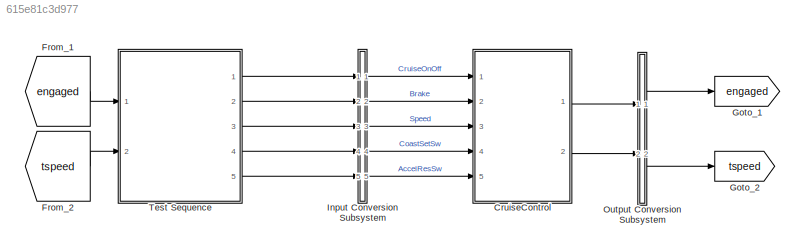
MODEL slx_615e81c3d977
KIND model
CONFIG AbsTol = auto
CONFIG EnableMultiTasking = on
CONFIG FixedStep = 0.1
CONFIG MaxStep = auto
CONFIG MinStep = auto
CONFIG RelTol = 1e-3
CONFIG SampleTimeConstraint = Unconstrained
CONFIG SolverName = FixedStepDiscrete
CONFIG StartTime = 0.0
CONFIG StopTime = 10
BLOCK [ModelReference] CruiseControl
  ModelNameDialog = CruiseControl
  ModelReferenceVersion = 4.0
  Ports = [5, 2]
BLOCK [From] From_1
  GotoTag = engaged
BLOCK [From] From_2
  GotoTag = tspeed
BLOCK [Goto] Goto_1
  GotoTag = engaged
BLOCK [Goto] Goto_2
  GotoTag = tspeed
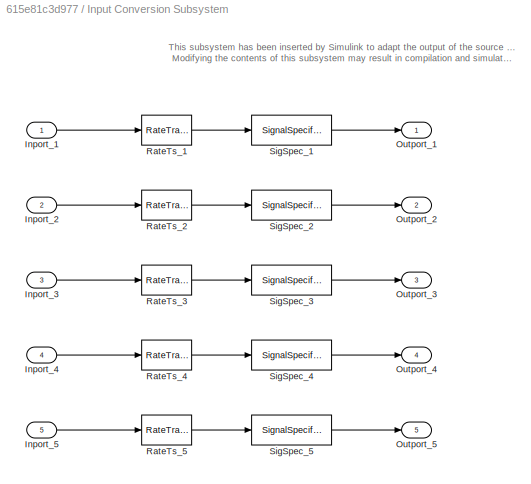
BLOCK [SubSystem] Input Conversion Subsystem
  AttributesFormatString = %<Description>
  Description = Signal spec.\nand routing
  Permissions = ReadOnly
  PermitHierarchicalResolution = ExplicitOnly
  Ports = [5, 5]
  RequestExecContextInheritance = off
  Tag = __SLT_ICS__
  UserDataPersistent = on
BLOCK [Inport] Input Conversion Subsystem/Inport_1
BLOCK [Inport] Input Conversion Subsystem/Inport_2
  Port = 2
BLOCK [Inport] Input Conversion Subsystem/Inport_3
  Port = 3
BLOCK [Inport] Input Conversion Subsystem/Inport_4
  Port = 4
BLOCK [Inport] Input Conversion Subsystem/Inport_5
  Port = 5
BLOCK [Outport] Input Conversion Subsystem/Outport_1
BLOCK [Outport] Input Conversion Subsystem/Outport_2
  Port = 2
BLOCK [Outport] Input Conversion Subsystem/Outport_3
  Port = 3
BLOCK [Outport] Input Conversion Subsystem/Outport_4
  Port = 4
BLOCK [Outport] Input Conversion Subsystem/Outport_5
  Port = 5
BLOCK [RateTransition] Input Conversion Subsystem/RateTs_1
  OutPortSampleTime = 0.1
BLOCK [RateTransition] Input Conversion Subsystem/RateTs_2
  OutPortSampleTime = 0.1
BLOCK [RateTransition] Input Conversion Subsystem/RateTs_3
  OutPortSampleTime = 0.1
BLOCK [RateTransition] Input Conversion Subsystem/RateTs_4
  OutPortSampleTime = 0.1
BLOCK [RateTransition] Input Conversion Subsystem/RateTs_5
  OutPortSampleTime = 0.1
BLOCK [SignalSpecification] Input Conversion Subsystem/SigSpec_1
  Dimensions = [1]
  OutDataTypeStr = boolean
  SampleTime = 0.1
  SignalType = real
  VarSizeSig = No
BLOCK [SignalSpecification] Input Conversion Subsystem/SigSpec_2
  Dimensions = [1]
  OutDataTypeStr = boolean
  SampleTime = 0.1
  SignalType = real
  VarSizeSig = No
BLOCK [SignalSpecification] Input Conversion Subsystem/SigSpec_3
  Dimensions = [1]
  OutDataTypeStr = uint8
  SampleTime = 0.1
  SignalType = real
  VarSizeSig = No
BLOCK [SignalSpecification] Input Conversion Subsystem/SigSpec_4
  Dimensions = [1]
  OutDataTypeStr = boolean
  SampleTime = 0.1
  SignalType = real
  VarSizeSig = No
BLOCK [SignalSpecification] Input Conversion Subsystem/SigSpec_5
  Dimensions = [1]
  OutDataTypeStr = boolean
  SampleTime = 0.1
  SignalType = real
  VarSizeSig = No
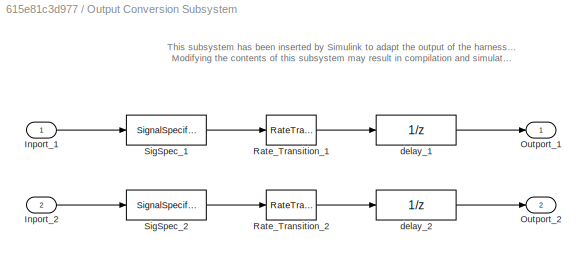
BLOCK [SubSystem] Output Conversion Subsystem
  AttributesFormatString = %<Description>
  Description = Signal spec.\nand routing
  Permissions = ReadOnly
  PermitHierarchicalResolution = ExplicitOnly
  Ports = [2, 2]
  RequestExecContextInheritance = off
  Tag = __SLT_OCS__
  UserDataPersistent = on
BLOCK [Inport] Output Conversion Subsystem/Inport_1
BLOCK [Inport] Output Conversion Subsystem/Inport_2
  Port = 2
BLOCK [Outport] Output Conversion Subsystem/Outport_1
BLOCK [Outport] Output Conversion Subsystem/Outport_2
  Port = 2
BLOCK [RateTransition] Output Conversion Subsystem/Rate_Transition_1
  OutPortSampleTimeOpt = Inherit
BLOCK [RateTransition] Output Conversion Subsystem/Rate_Transition_2
  OutPortSampleTimeOpt = Inherit
BLOCK [SignalSpecification] Output Conversion Subsystem/SigSpec_1
  Dimensions = [1]
  OutDataTypeStr = boolean
  SampleTime = 0.1
  SignalType = real
  VarSizeSig = No
BLOCK [SignalSpecification] Output Conversion Subsystem/SigSpec_2
  Dimensions = [1]
  OutDataTypeStr = uint8
  SampleTime = 0.1
  SignalType = real
  VarSizeSig = No
BLOCK [UnitDelay] Output Conversion Subsystem/delay_1
  SampleTime = -1
BLOCK [UnitDelay] Output Conversion Subsystem/delay_2
  SampleTime = -1
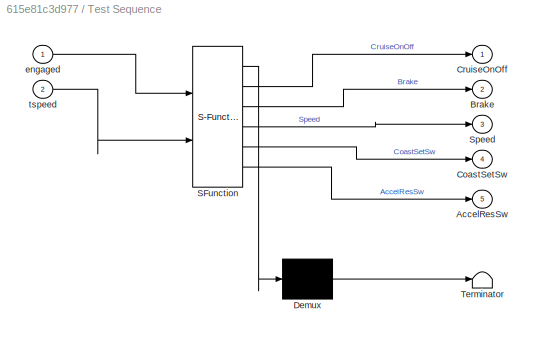
BLOCK [SubSystem] Test Sequence
  ErrorFcn = Stateflow.Translate.translate
  PermitHierarchicalResolution = ExplicitOnly
  Ports = [2, 5]
  RequestExecContextInheritance = off
  SFBlockType = Test Sequence
  ShowPortLabels = none
  TreatAsAtomicUnit = on
BLOCK [Demux] Test Sequence/ Demux 
  Outputs = 1
  Ports = [1, 1]
BLOCK [S-Function] Test Sequence/ SFunction 
  EnableBusSupport = off
  FunctionName = sf_sfun
  PortCounts = [2 6]
  Ports = [2, 6]
  SFcnIsStateOwnerBlock = off
  SFunctionDeploymentMode = off
  Tag = Stateflow S-Function 4
BLOCK [Terminator] Test Sequence/ Terminator 
BLOCK [Outport] Test Sequence/AccelResSw
  Port = 5
BLOCK [Outport] Test Sequence/Brake
  Port = 2
BLOCK [Outport] Test Sequence/CoastSetSw
  Port = 4
BLOCK [Outport] Test Sequence/CruiseOnOff
BLOCK [Outport] Test Sequence/Speed
  Port = 3
BLOCK [Inport] Test Sequence/engaged
BLOCK [Inport] Test Sequence/tspeed
  Port = 2
ANNOTATION Input Conversion Subsystem: This subsystem has been inserted by Simulink to adapt the output of the source blocks to the interface required by the harnessed component. Modifying the contents of this subsystem may result in compilation and simulation failure.
ANNOTATION Output Conversion Subsystem: This subsystem has been inserted by Simulink to adapt the output of the harnessed component to the interface required by the sink blocks. Modifying the contents of this subsystem may result in compilation and simulation failure.
LINE CruiseControl:1 -> Output Conversion Subsystem:1
LINE CruiseControl:2 -> Output Conversion Subsystem:2
LINE From_1:1 -> Test Sequence:1
LINE From_2:1 -> Test Sequence:2
LINE Input Conversion Subsystem/Inport_1:1 -> Input Conversion Subsystem/RateTs_1:1
LINE Input Conversion Subsystem/Inport_2:1 -> Input Conversion Subsystem/RateTs_2:1
LINE Input Conversion Subsystem/Inport_3:1 -> Input Conversion Subsystem/RateTs_3:1
LINE Input Conversion Subsystem/Inport_4:1 -> Input Conversion Subsystem/RateTs_4:1
LINE Input Conversion Subsystem/Inport_5:1 -> Input Conversion Subsystem/RateTs_5:1
LINE Input Conversion Subsystem/RateTs_1:1 -> Input Conversion Subsystem/SigSpec_1:1
LINE Input Conversion Subsystem/RateTs_2:1 -> Input Conversion Subsystem/SigSpec_2:1
LINE Input Conversion Subsystem/RateTs_3:1 -> Input Conversion Subsystem/SigSpec_3:1
LINE Input Conversion Subsystem/RateTs_4:1 -> Input Conversion Subsystem/SigSpec_4:1
LINE Input Conversion Subsystem/RateTs_5:1 -> Input Conversion Subsystem/SigSpec_5:1
LINE Input Conversion Subsystem/SigSpec_1:1 -> Input Conversion Subsystem/Outport_1:1
LINE Input Conversion Subsystem/SigSpec_2:1 -> Input Conversion Subsystem/Outport_2:1
LINE Input Conversion Subsystem/SigSpec_3:1 -> Input Conversion Subsystem/Outport_3:1
LINE Input Conversion Subsystem/SigSpec_4:1 -> Input Conversion Subsystem/Outport_4:1
LINE Input Conversion Subsystem/SigSpec_5:1 -> Input Conversion Subsystem/Outport_5:1
LINE Input Conversion Subsystem:1 -> CruiseControl:1
LINE Input Conversion Subsystem:2 -> CruiseControl:2
LINE Input Conversion Subsystem:3 -> CruiseControl:3
LINE Input Conversion Subsystem:4 -> CruiseControl:4
LINE Input Conversion Subsystem:5 -> CruiseControl:5
LINE Output Conversion Subsystem/Inport_1:1 -> Output Conversion Subsystem/SigSpec_1:1
LINE Output Conversion Subsystem/Inport_2:1 -> Output Conversion Subsystem/SigSpec_2:1
LINE Output Conversion Subsystem/Rate_Transition_1:1 -> Output Conversion Subsystem/delay_1:1
LINE Output Conversion Subsystem/Rate_Transition_2:1 -> Output Conversion Subsystem/delay_2:1
LINE Output Conversion Subsystem/SigSpec_1:1 -> Output Conversion Subsystem/Rate_Transition_1:1
LINE Output Conversion Subsystem/SigSpec_2:1 -> Output Conversion Subsystem/Rate_Transition_2:1
LINE Output Conversion Subsystem/delay_1:1 -> Output Conversion Subsystem/Outport_1:1
LINE Output Conversion Subsystem/delay_2:1 -> Output Conversion Subsystem/Outport_2:1
LINE Output Conversion Subsystem:1 -> Goto_1:1
LINE Output Conversion Subsystem:2 -> Goto_2:1
LINE Test Sequence:1 -> Input Conversion Subsystem:1
LINE Test Sequence:2 -> Input Conversion Subsystem:2
LINE Test Sequence:3 -> Input Conversion Subsystem:3
LINE Test Sequence:4 -> Input Conversion Subsystem:4
LINE Test Sequence:5 -> Input Conversion Subsystem:5
CHART Test Sequence states=3 transitions=3
  STATE_LABEL 'Run\n\n%% Initialize data outputs.\nCruiseOnOff = true;\nBrake = false;\nSpeed = uint8(50);\nCoastSetSw = false;\nAccelResSw = false;'
  STATE_LABEL 'step_1\nCoastSetSw = true;'
  STATE_LABEL 'step_2\nBrake = true;'
CHART  states=0 transitions=0
